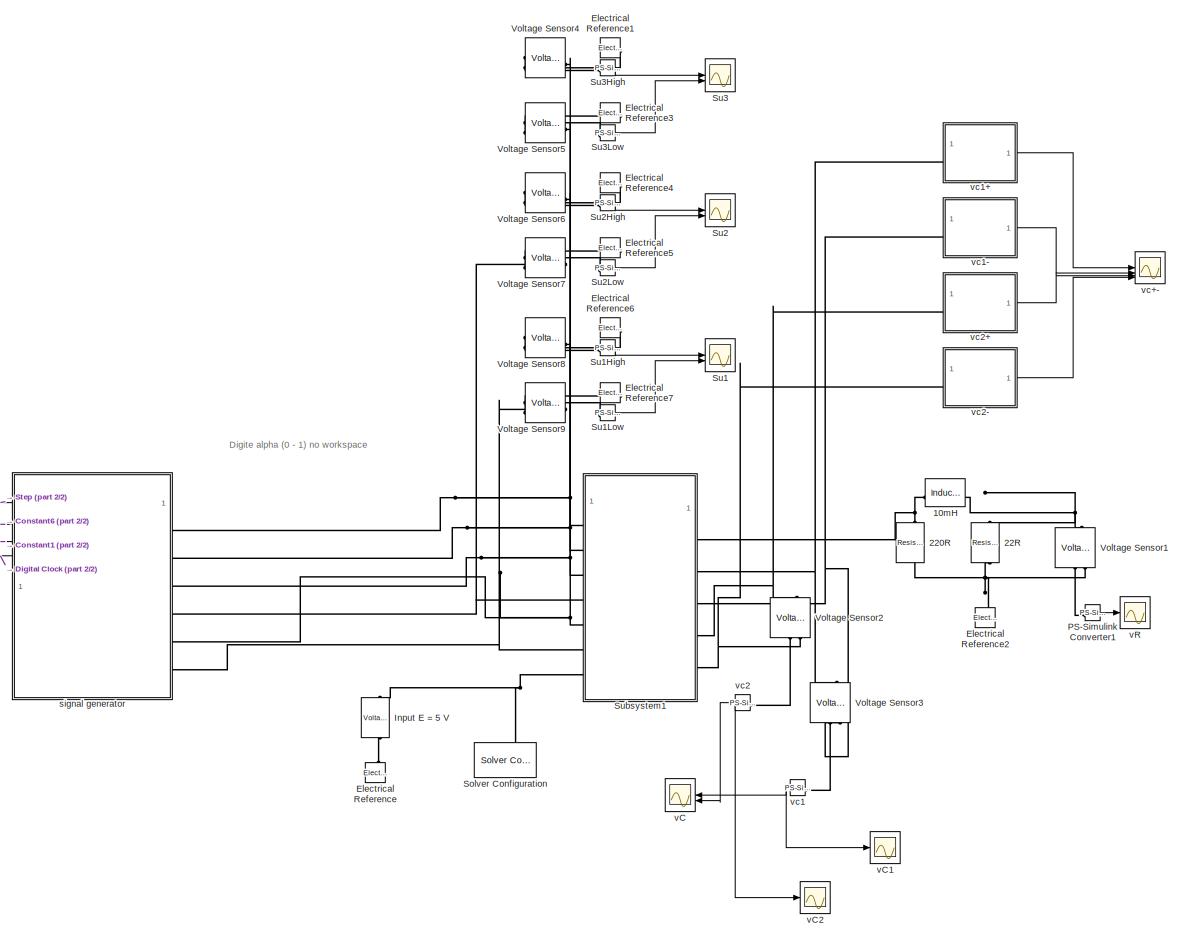
[diagram: root canvas - part 1/2, most of the canvas]
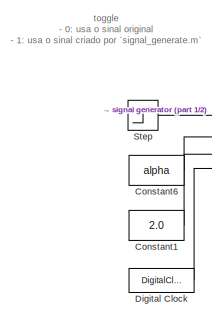
[diagram: root canvas - part 2/2, middle left region]
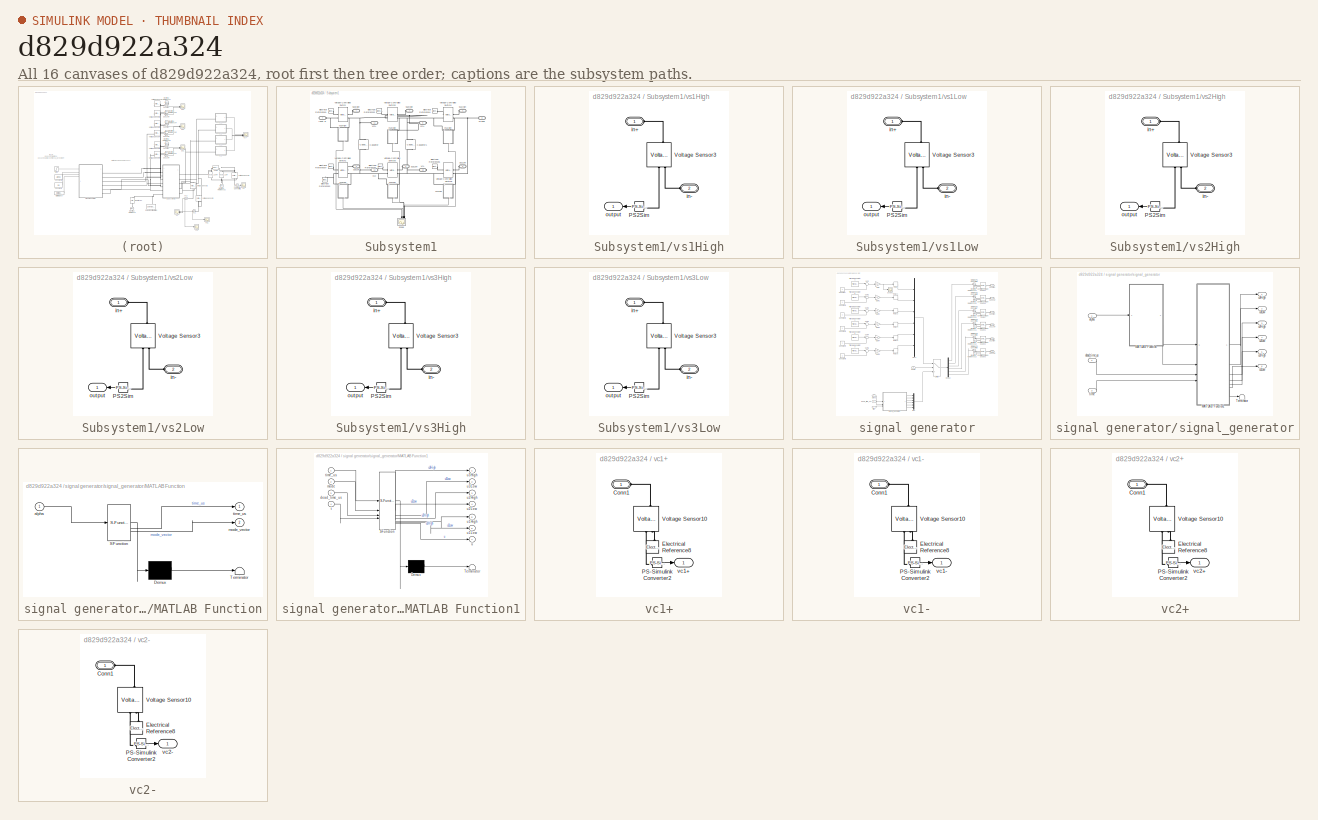
[diagram: thumbnail index - all 16 canvases of the model, root first then tree order]
MODEL slx_d829d922a324
KIND model
CONFIG AbsTol = auto
CONFIG EnableMultiTasking = off
CONFIG FixedStep = 1e-7
CONFIG MaxStep = auto
CONFIG MinStep = auto
CONFIG RelTol = 1e-3
CONFIG SampleTimeConstraint = Unconstrained
CONFIG SolverName = FixedStepAuto
CONFIG StartTime = 0.0
CONFIG StopTime = 0.04
BLOCK [Reference] 10mH  REF=ee_lib/Passive/Inductor
  SourceBlock = ee_lib/Passive/Inductor
  SourceType = Inductor
BLOCK [Reference] 220R  REF=ee_lib/Passive/Resistor
  NameLocation = left
  SourceBlock = ee_lib/Passive/Resistor
  SourceType = Resistor
BLOCK [Reference] 22R  REF=ee_lib/Passive/Resistor
  NameLocation = right
  SourceBlock = ee_lib/Passive/Resistor
  SourceType = Resistor
BLOCK [Constant] Constant1
  Value = 2.0
BLOCK [Constant] Constant6
  Value = alpha
BLOCK [DigitalClock] Digital Clock
  SampleTime = 1e-7
BLOCK [Reference] Electrical Reference  REF=fl_lib/Electrical/Electrical Elements/Electrical Reference
  LibrarySourceBlock = ee_lib/Connectors &\nReferences/Electrical Reference
  NameLocation = right
  SourceBlock = fl_lib/Electrical/Electrical Elements/Electrical Reference
  SourceType = Electrical Reference
BLOCK [Reference] Electrical Reference1  REF=fl_lib/Electrical/Electrical Elements/Electrical Reference
  LibrarySourceBlock = ee_lib/Connectors &\nReferences/Electrical Reference
  NameLocation = top
  SourceBlock = fl_lib/Electrical/Electrical Elements/Electrical Reference
  SourceType = Electrical Reference
BLOCK [Reference] Electrical Reference2  REF=fl_lib/Electrical/Electrical Elements/Electrical Reference
  LibrarySourceBlock = ee_lib/Connectors &\nReferences/Electrical Reference
  NameLocation = right
  SourceBlock = fl_lib/Electrical/Electrical Elements/Electrical Reference
  SourceType = Electrical Reference
BLOCK [Reference] Electrical Reference3  REF=fl_lib/Electrical/Electrical Elements/Electrical Reference
  LibrarySourceBlock = ee_lib/Connectors &\nReferences/Electrical Reference
  NameLocation = top
  SourceBlock = fl_lib/Electrical/Electrical Elements/Electrical Reference
  SourceType = Electrical Reference
BLOCK [Reference] Electrical Reference4  REF=fl_lib/Electrical/Electrical Elements/Electrical Reference
  LibrarySourceBlock = ee_lib/Connectors &\nReferences/Electrical Reference
  NameLocation = top
  SourceBlock = fl_lib/Electrical/Electrical Elements/Electrical Reference
  SourceType = Electrical Reference
BLOCK [Reference] Electrical Reference5  REF=fl_lib/Electrical/Electrical Elements/Electrical Reference
  LibrarySourceBlock = ee_lib/Connectors &\nReferences/Electrical Reference
  NameLocation = top
  SourceBlock = fl_lib/Electrical/Electrical Elements/Electrical Reference
  SourceType = Electrical Reference
BLOCK [Reference] Electrical Reference6  REF=fl_lib/Electrical/Electrical Elements/Electrical Reference
  LibrarySourceBlock = ee_lib/Connectors &\nReferences/Electrical Reference
  NameLocation = top
  SourceBlock = fl_lib/Electrical/Electrical Elements/Electrical Reference
  SourceType = Electrical Reference
BLOCK [Reference] Electrical Reference7  REF=fl_lib/Electrical/Electrical Elements/Electrical Reference
  LibrarySourceBlock = ee_lib/Connectors &\nReferences/Electrical Reference
  NameLocation = top
  SourceBlock = fl_lib/Electrical/Electrical Elements/Electrical Reference
  SourceType = Electrical Reference
BLOCK [Reference] Input E = 5 V  REF=ee_lib/Sources/Voltage Source
  NameLocation = left
  SourceBlock = ee_lib/Sources/Voltage Source
  SourceType = Voltage Source
BLOCK [Reference] PS-Simulink Converter1  REF=nesl_utility/PS-Simulink
Converter
  SourceBlock = nesl_utility/PS-Simulink\nConverter
  SourceType = PS-Simulink\nConverter
BLOCK [Reference] Solver Configuration  REF=nesl_utility/Solver
Configuration
  NameLocation = right
  SourceBlock = nesl_utility/Solver\nConfiguration
  SourceType = Solver\nConfiguration
BLOCK [Step] Step
  After = 0
  Before = 1
  SampleTime = 0
  Time = 0
BLOCK [Scope] Su1
  ActiveDisplayYMaximum = 1.0003414939639432
  ActiveDisplayYMinimum = 0.99850460772373162
  DataLoggingVariableName = ScopeData3
  Floating = off
  GraphicalSettings = {"AxesScalingProperties":{"AlignXAxis":"Center","AlignYAxis":"Center","AutoScaleXAxisLimits":false,"AxesScaling":"Manual","AxesScalingNumUpdates":10,"ExpandOnly":true,"ScaleAxesLimitsAtStop":false,"XAxisDataRange":100,"YAxisDataRange":80},"Cursors":{"CursorChannels":["auto","auto"],"Enabled":true,"Horizontal":true,"LinkToWaveform":true,"LockSpacing":false,"ShowMeasurement":true,"ShowPanel":false,"...<+2378ch>
  MultipleDisplayCache = [{"MaxYLimMag":1.25,"MaxYLimReal":1.0003414939639432,"MinYLimMag":0,"MinYLimReal":0.99850460772373162,"PlotAsMagnitudePhase":false,"ShowGrid":true,"ShowLegend":true,"Title":"%<SignalLabel>","YLabel":""}]
  NumInputPorts = 2
  ScopeFrameLocation = container
  ShowLegend = on
  WasSavedAsWebScope = on
  WindowPosition = [1378.000000,50.000000,1374.000000,1073.000000,]
BLOCK [Reference] Su1High  REF=nesl_utility/PS-Simulink
Converter
  SourceBlock = nesl_utility/PS-Simulink\nConverter
  SourceType = PS-Simulink\nConverter
BLOCK [Reference] Su1Low  REF=nesl_utility/PS-Simulink
Converter
  SourceBlock = nesl_utility/PS-Simulink\nConverter
  SourceType = PS-Simulink\nConverter
BLOCK [Scope] Su2
  ActiveDisplayYMaximum = 1.07216
  ActiveDisplayYMinimum = -1.01553
  DataLoggingVariableName = ScopeData2
  Floating = off
  GraphicalSettings = {"Style":{"BackgroundColor":[0.12941176470588237,0.12941176470588237,0.12941176470588237],"AxesColor":[0.07058823529411765,0.07058823529411765,0.07058823529411765],"LabelsColor":[0.8509803921568627,0.8509803921568627,0.8509803921568627],"PreserveColors":false,"Visible":[true,true],"LineStyle":["-","-"],"LineWidth":[1.5,1.5],"BarWidth":[0.9,0.9],"LineColor":["auto","auto"],"LineFaceAlpha":[1,1],"Li...<+2322ch>
  MultipleDisplayCache = [{"MaxYLimMag":1.07216,"MaxYLimReal":1.07216,"MinYLimMag":0,"MinYLimReal":-1.01553,"PlotAsMagnitudePhase":false,"ShowGrid":true,"ShowLegend":true,"Title":"%<SignalLabel>","YLabel":""}]
  NumInputPorts = 2
  ScopeFrameLocation = container
  ShowLegend = on
  WasSavedAsWebScope = on
  WindowPosition = [1378.000000,50.000000,1374.000000,1073.000000,]
BLOCK [Reference] Su2High  REF=nesl_utility/PS-Simulink
Converter
  SourceBlock = nesl_utility/PS-Simulink\nConverter
  SourceType = PS-Simulink\nConverter
BLOCK [Reference] Su2Low  REF=nesl_utility/PS-Simulink
Converter
  SourceBlock = nesl_utility/PS-Simulink\nConverter
  SourceType = PS-Simulink\nConverter
BLOCK [Scope] Su3
  ActiveDisplayYMaximum = 1.25
  ActiveDisplayYMinimum = -1.25
  DataLoggingVariableName = ScopeData1
  Floating = off
  GraphicalSettings = {"GraphicalSettings":{"LegacySettings":true,"Style":{"AxesScalingProperties":{"ScaleAxesLimitsAtStop":false},"Style":{"AxesColor":"[0 0 0]","ChannelNames":[""],"ColorOrder":"[1 0.909803921568627 0.392156862745098;0.149019607843137 0.549019607843137 0.866666666666667;0.96078431372549 0.466666666666667 0.16078431372549;0.286274509803922 0.858823529411765 0.250980392156863;0.752941176470588 0.3607843...<+516ch>
  MultipleDisplayCache = [{"MaxYLimMag":1.25,"MaxYLimReal":1.25,"MinYLimMag":0,"MinYLimReal":-1.25,"PlotAsMagnitudePhase":false,"ShowGrid":true,"ShowLegend":true,"Title":"%<SignalLabel>","YLabel":""}]
  NumInputPorts = 2
  ShowLegend = on
  WasSavedAsWebScope = on
  WindowPosition = [1 49 1366 643]
BLOCK [Reference] Su3High  REF=nesl_utility/PS-Simulink
Converter
  SourceBlock = nesl_utility/PS-Simulink\nConverter
  SourceType = PS-Simulink\nConverter
BLOCK [Reference] Su3Low  REF=nesl_utility/PS-Simulink
Converter
  SourceBlock = nesl_utility/PS-Simulink\nConverter
  SourceType = PS-Simulink\nConverter
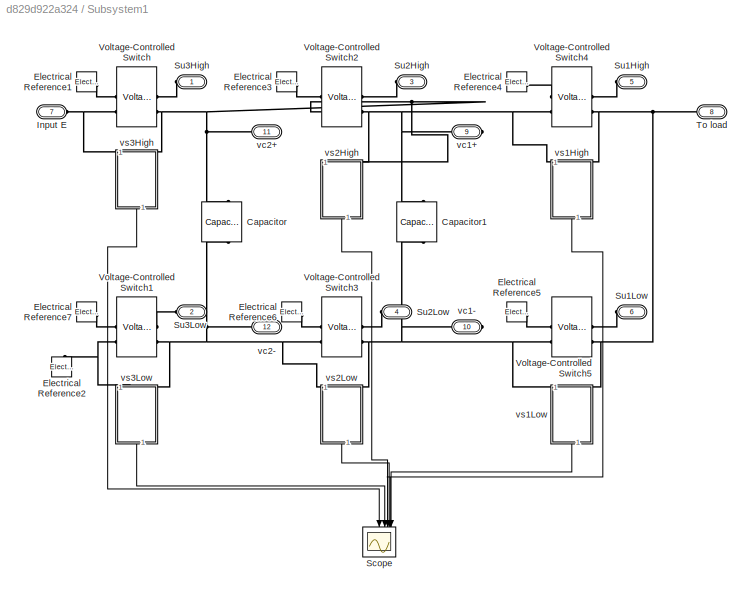
BLOCK [SubSystem] Subsystem1
BLOCK [Reference] Subsystem1/Capacitor  REF=ee_lib/Passive/Capacitor
  NameLocation = left
  SourceBlock = ee_lib/Passive/Capacitor
  SourceType = Capacitor
BLOCK [Reference] Subsystem1/Capacitor1  REF=ee_lib/Passive/Capacitor
  NameLocation = left
  SourceBlock = ee_lib/Passive/Capacitor
  SourceType = Capacitor
BLOCK [Reference] Subsystem1/Electrical Reference1  REF=fl_lib/Electrical/Electrical Elements/Electrical Reference
  LibrarySourceBlock = ee_lib/Connectors &\nReferences/Electrical Reference
  SourceBlock = fl_lib/Electrical/Electrical Elements/Electrical Reference
  SourceType = Electrical Reference
BLOCK [Reference] Subsystem1/Electrical Reference2  REF=fl_lib/Electrical/Electrical Elements/Electrical Reference
  LibrarySourceBlock = ee_lib/Connectors &\nReferences/Electrical Reference
  NameLocation = right
  SourceBlock = fl_lib/Electrical/Electrical Elements/Electrical Reference
  SourceType = Electrical Reference
BLOCK [Reference] Subsystem1/Electrical Reference3  REF=fl_lib/Electrical/Electrical Elements/Electrical Reference
  LibrarySourceBlock = ee_lib/Connectors &\nReferences/Electrical Reference
  SourceBlock = fl_lib/Electrical/Electrical Elements/Electrical Reference
  SourceType = Electrical Reference
BLOCK [Reference] Subsystem1/Electrical Reference4  REF=fl_lib/Electrical/Electrical Elements/Electrical Reference
  LibrarySourceBlock = ee_lib/Connectors &\nReferences/Electrical Reference
  SourceBlock = fl_lib/Electrical/Electrical Elements/Electrical Reference
  SourceType = Electrical Reference
BLOCK [Reference] Subsystem1/Electrical Reference5  REF=fl_lib/Electrical/Electrical Elements/Electrical Reference
  LibrarySourceBlock = ee_lib/Connectors &\nReferences/Electrical Reference
  SourceBlock = fl_lib/Electrical/Electrical Elements/Electrical Reference
  SourceType = Electrical Reference
BLOCK [Reference] Subsystem1/Electrical Reference6  REF=fl_lib/Electrical/Electrical Elements/Electrical Reference
  LibrarySourceBlock = ee_lib/Connectors &\nReferences/Electrical Reference
  SourceBlock = fl_lib/Electrical/Electrical Elements/Electrical Reference
  SourceType = Electrical Reference
BLOCK [Reference] Subsystem1/Electrical Reference7  REF=fl_lib/Electrical/Electrical Elements/Electrical Reference
  LibrarySourceBlock = ee_lib/Connectors &\nReferences/Electrical Reference
  SourceBlock = fl_lib/Electrical/Electrical Elements/Electrical Reference
  SourceType = Electrical Reference
BLOCK [PMIOPort] Subsystem1/Input E
  Port = 7
  Side = Left
BLOCK [Scope] Subsystem1/Scope
  ActiveDisplayYMaximum = 25.227625908816535
  ActiveDisplayYMinimum = -8.8853464798149755
  DataLoggingVariableName = ScopeData2
  Floating = off
  GraphicalSettings = {"Style":{"BackgroundColor":[0.12941176470588237,0.12941176470588237,0.12941176470588237],"AxesColor":[0.07058823529411765,0.07058823529411765,0.07058823529411765],"LabelsColor":[0.8509803921568627,0.8509803921568627,0.8509803921568627],"PreserveColors":false,"Visible":[true,true,true,true,true,true],"LineStyle":["-","-","-","-","-","-"],"LineWidth":[1.5,1.5,1.5,1.5,1.5,1.5],"BarWidth":[0.9,0.9,0....<+2546ch>
  MultipleDisplayCache = [{"MaxYLimMag":25.227625908816535,"MaxYLimReal":25.227625908816535,"MinYLimMag":0,"MinYLimReal":-8.8853464798149755,"PlotAsMagnitudePhase":false,"ShowGrid":true,"ShowLegend":true,"Title":"%<SignalLabel>","YLabel":""}]
  NameLocation = left
  NumInputPorts = 6
  ScopeFrameLocation = container
  ShowLegend = on
  WasSavedAsWebScope = on
  WindowPosition = [1378.000000,50.000000,1374.000000,1073.000000,]
BLOCK [PMIOPort] Subsystem1/Su1High
  NameLocation = top
  Port = 5
  Side = Left
BLOCK [PMIOPort] Subsystem1/Su1Low
  NameLocation = top
  Port = 6
  Side = Left
BLOCK [PMIOPort] Subsystem1/Su2High
  NameLocation = top
  Port = 3
  Side = Left
BLOCK [PMIOPort] Subsystem1/Su2Low
  NameLocation = top
  Port = 4
  Side = Left
BLOCK [PMIOPort] Subsystem1/Su3High
  NameLocation = top
  Side = Left
BLOCK [PMIOPort] Subsystem1/Su3Low
  NameLocation = top
  Port = 2
  Side = Left
BLOCK [PMIOPort] Subsystem1/To load
  NameLocation = top
  Port = 8
  Side = Right
BLOCK [Reference] Subsystem1/Voltage-Controlled Switch  REF=ee_lib/Additional
Components/SPICE Passives/Voltage-Controlled
Switch
  SourceBlock = ee_lib/Additional\nComponents/SPICE Passives/Voltage-Controlled\nSwitch
  SourceType = Voltage-Controlled\nSwitch
BLOCK [Reference] Subsystem1/Voltage-Controlled Switch1  REF=ee_lib/Additional
Components/SPICE Passives/Voltage-Controlled
Switch
  SourceBlock = ee_lib/Additional\nComponents/SPICE Passives/Voltage-Controlled\nSwitch
  SourceType = Voltage-Controlled\nSwitch
BLOCK [Reference] Subsystem1/Voltage-Controlled Switch2  REF=ee_lib/Additional
Components/SPICE Passives/Voltage-Controlled
Switch
  SourceBlock = ee_lib/Additional\nComponents/SPICE Passives/Voltage-Controlled\nSwitch
  SourceType = Voltage-Controlled\nSwitch
BLOCK [Reference] Subsystem1/Voltage-Controlled Switch3  REF=ee_lib/Additional
Components/SPICE Passives/Voltage-Controlled
Switch
  SourceBlock = ee_lib/Additional\nComponents/SPICE Passives/Voltage-Controlled\nSwitch
  SourceType = Voltage-Controlled\nSwitch
BLOCK [Reference] Subsystem1/Voltage-Controlled Switch4  REF=ee_lib/Additional
Components/SPICE Passives/Voltage-Controlled
Switch
  SourceBlock = ee_lib/Additional\nComponents/SPICE Passives/Voltage-Controlled\nSwitch
  SourceType = Voltage-Controlled\nSwitch
BLOCK [Reference] Subsystem1/Voltage-Controlled Switch5  REF=ee_lib/Additional
Components/SPICE Passives/Voltage-Controlled
Switch
  SourceBlock = ee_lib/Additional\nComponents/SPICE Passives/Voltage-Controlled\nSwitch
  SourceType = Voltage-Controlled\nSwitch
BLOCK [PMIOPort] Subsystem1/vc1+
  Port = 9
  Side = Right
BLOCK [PMIOPort] Subsystem1/vc1-
  NameLocation = top
  Port = 10
  Side = Right
BLOCK [PMIOPort] Subsystem1/vc2+
  Port = 11
  Side = Right
BLOCK [PMIOPort] Subsystem1/vc2-
  NameLocation = top
  Port = 12
  Side = Right
BLOCK [SubSystem] Subsystem1/vs1High
  NameLocation = left
BLOCK [Reference] Subsystem1/vs1High/PS2Sim  REF=nesl_utility/PS-Simulink
Converter
  NameLocation = top
  SourceBlock = nesl_utility/PS-Simulink\nConverter
  SourceType = PS-Simulink\nConverter
BLOCK [Reference] Subsystem1/vs1High/Voltage Sensor3  REF=fl_lib/Electrical/Electrical Sensors/Voltage Sensor
  NameLocation = right
  SourceBlock = fl_lib/Electrical/Electrical Sensors/Voltage Sensor
  SourceType = Voltage Sensor
BLOCK [PMIOPort] Subsystem1/vs1High/in+
  Side = Left
BLOCK [PMIOPort] Subsystem1/vs1High/in-
  Port = 2
  Side = Left
BLOCK [Outport] Subsystem1/vs1High/output
BLOCK [SubSystem] Subsystem1/vs1Low
  NameLocation = left
BLOCK [Reference] Subsystem1/vs1Low/PS2Sim  REF=nesl_utility/PS-Simulink
Converter
  NameLocation = top
  SourceBlock = nesl_utility/PS-Simulink\nConverter
  SourceType = PS-Simulink\nConverter
BLOCK [Reference] Subsystem1/vs1Low/Voltage Sensor3  REF=fl_lib/Electrical/Electrical Sensors/Voltage Sensor
  NameLocation = right
  SourceBlock = fl_lib/Electrical/Electrical Sensors/Voltage Sensor
  SourceType = Voltage Sensor
BLOCK [PMIOPort] Subsystem1/vs1Low/in+
  Side = Left
BLOCK [PMIOPort] Subsystem1/vs1Low/in-
  Port = 2
  Side = Left
BLOCK [Outport] Subsystem1/vs1Low/output
BLOCK [SubSystem] Subsystem1/vs2High
  NameLocation = left
BLOCK [Reference] Subsystem1/vs2High/PS2Sim  REF=nesl_utility/PS-Simulink
Converter
  NameLocation = top
  SourceBlock = nesl_utility/PS-Simulink\nConverter
  SourceType = PS-Simulink\nConverter
BLOCK [Reference] Subsystem1/vs2High/Voltage Sensor3  REF=fl_lib/Electrical/Electrical Sensors/Voltage Sensor
  NameLocation = right
  SourceBlock = fl_lib/Electrical/Electrical Sensors/Voltage Sensor
  SourceType = Voltage Sensor
BLOCK [PMIOPort] Subsystem1/vs2High/in+
  Side = Left
BLOCK [PMIOPort] Subsystem1/vs2High/in-
  Port = 2
  Side = Left
BLOCK [Outport] Subsystem1/vs2High/output
BLOCK [SubSystem] Subsystem1/vs2Low
  NameLocation = left
BLOCK [Reference] Subsystem1/vs2Low/PS2Sim  REF=nesl_utility/PS-Simulink
Converter
  NameLocation = top
  SourceBlock = nesl_utility/PS-Simulink\nConverter
  SourceType = PS-Simulink\nConverter
BLOCK [Reference] Subsystem1/vs2Low/Voltage Sensor3  REF=fl_lib/Electrical/Electrical Sensors/Voltage Sensor
  NameLocation = right
  SourceBlock = fl_lib/Electrical/Electrical Sensors/Voltage Sensor
  SourceType = Voltage Sensor
BLOCK [PMIOPort] Subsystem1/vs2Low/in+
  Side = Left
BLOCK [PMIOPort] Subsystem1/vs2Low/in-
  Port = 2
  Side = Left
BLOCK [Outport] Subsystem1/vs2Low/output
BLOCK [SubSystem] Subsystem1/vs3High
  NameLocation = left
BLOCK [Reference] Subsystem1/vs3High/PS2Sim  REF=nesl_utility/PS-Simulink
Converter
  NameLocation = top
  SourceBlock = nesl_utility/PS-Simulink\nConverter
  SourceType = PS-Simulink\nConverter
BLOCK [Reference] Subsystem1/vs3High/Voltage Sensor3  REF=fl_lib/Electrical/Electrical Sensors/Voltage Sensor
  LibrarySourceBlock = ee_lib/Sensors &\nTransducers/Voltage Sensor
  NameLocation = right
  SourceBlock = fl_lib/Electrical/Electrical Sensors/Voltage Sensor
  SourceType = Voltage Sensor
BLOCK [PMIOPort] Subsystem1/vs3High/in+
  Side = Left
BLOCK [PMIOPort] Subsystem1/vs3High/in-
  Port = 2
  Side = Left
BLOCK [Outport] Subsystem1/vs3High/output
BLOCK [SubSystem] Subsystem1/vs3Low
  NameLocation = left
BLOCK [Reference] Subsystem1/vs3Low/PS2Sim  REF=nesl_utility/PS-Simulink
Converter
  NameLocation = top
  SourceBlock = nesl_utility/PS-Simulink\nConverter
  SourceType = PS-Simulink\nConverter
BLOCK [Reference] Subsystem1/vs3Low/Voltage Sensor3  REF=fl_lib/Electrical/Electrical Sensors/Voltage Sensor
  NameLocation = right
  SourceBlock = fl_lib/Electrical/Electrical Sensors/Voltage Sensor
  SourceType = Voltage Sensor
BLOCK [PMIOPort] Subsystem1/vs3Low/in+
  Side = Left
BLOCK [PMIOPort] Subsystem1/vs3Low/in-
  Port = 2
  Side = Left
BLOCK [Outport] Subsystem1/vs3Low/output
BLOCK [Reference] Voltage Sensor1  REF=fl_lib/Electrical/Electrical Sensors/Voltage Sensor
  LibrarySourceBlock = ee_lib/Sensors &\nTransducers/Voltage Sensor
  NameLocation = right
  SourceBlock = fl_lib/Electrical/Electrical Sensors/Voltage Sensor
  SourceType = Voltage Sensor
BLOCK [Reference] Voltage Sensor2  REF=fl_lib/Electrical/Electrical Sensors/Voltage Sensor
  LibrarySourceBlock = ee_lib/Sensors &\nTransducers/Voltage Sensor
  NameLocation = right
  SourceBlock = fl_lib/Electrical/Electrical Sensors/Voltage Sensor
  SourceType = Voltage Sensor
BLOCK [Reference] Voltage Sensor3  REF=fl_lib/Electrical/Electrical Sensors/Voltage Sensor
  LibrarySourceBlock = ee_lib/Sensors &\nTransducers/Voltage Sensor
  NameLocation = right
  SourceBlock = fl_lib/Electrical/Electrical Sensors/Voltage Sensor
  SourceType = Voltage Sensor
BLOCK [Reference] Voltage Sensor4  REF=fl_lib/Electrical/Electrical Sensors/Voltage Sensor
  LibrarySourceBlock = ee_lib/Sensors &\nTransducers/Voltage Sensor
  NameLocation = top
  SourceBlock = fl_lib/Electrical/Electrical Sensors/Voltage Sensor
  SourceType = Voltage Sensor
BLOCK [Reference] Voltage Sensor5  REF=fl_lib/Electrical/Electrical Sensors/Voltage Sensor
  LibrarySourceBlock = ee_lib/Sensors &\nTransducers/Voltage Sensor
  NameLocation = top
  SourceBlock = fl_lib/Electrical/Electrical Sensors/Voltage Sensor
  SourceType = Voltage Sensor
BLOCK [Reference] Voltage Sensor6  REF=fl_lib/Electrical/Electrical Sensors/Voltage Sensor
  LibrarySourceBlock = ee_lib/Sensors &\nTransducers/Voltage Sensor
  NameLocation = top
  SourceBlock = fl_lib/Electrical/Electrical Sensors/Voltage Sensor
  SourceType = Voltage Sensor
BLOCK [Reference] Voltage Sensor7  REF=fl_lib/Electrical/Electrical Sensors/Voltage Sensor
  LibrarySourceBlock = ee_lib/Sensors &\nTransducers/Voltage Sensor
  NameLocation = top
  SourceBlock = fl_lib/Electrical/Electrical Sensors/Voltage Sensor
  SourceType = Voltage Sensor
BLOCK [Reference] Voltage Sensor8  REF=fl_lib/Electrical/Electrical Sensors/Voltage Sensor
  LibrarySourceBlock = ee_lib/Sensors &\nTransducers/Voltage Sensor
  NameLocation = top
  SourceBlock = fl_lib/Electrical/Electrical Sensors/Voltage Sensor
  SourceType = Voltage Sensor
BLOCK [Reference] Voltage Sensor9  REF=fl_lib/Electrical/Electrical Sensors/Voltage Sensor
  LibrarySourceBlock = ee_lib/Sensors &\nTransducers/Voltage Sensor
  NameLocation = top
  SourceBlock = fl_lib/Electrical/Electrical Sensors/Voltage Sensor
  SourceType = Voltage Sensor
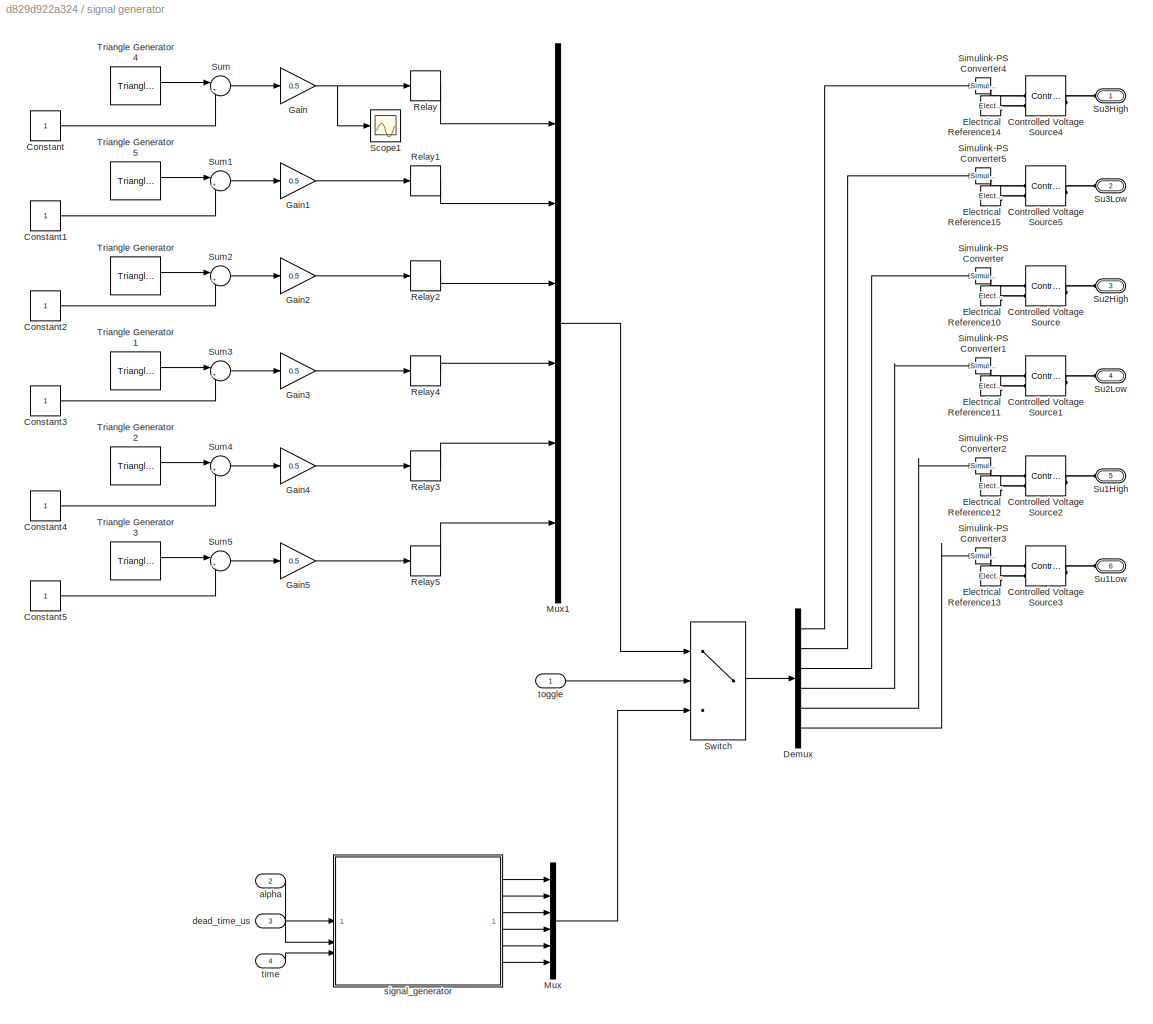
BLOCK [SubSystem] signal generator
  PortSchema = {"entries":[{"content":{"sides":[{"content":{"connectorIds":["LConn1","LConn2","LConn3","LConn4","LConn5","LConn6"]},"type":"ConnectorPlacement.EquallySpacedRectSide","uuid":"aa1a153a-1645-4c3d-b48e-03759f31f217"},{"content":{"connectorIds":["In1","In2","In3","In4"],"side":"RIGHT"},"type":"ConnectorPlacement.EquallySpacedRectSide","uuid":"be438c4b-dc66-4eaf-bb53-25e90e68573c"},{"content":{"side":"...<+287ch>
BLOCK [Constant] signal generator/Constant
BLOCK [Constant] signal generator/Constant1
BLOCK [Constant] signal generator/Constant2
BLOCK [Constant] signal generator/Constant3
BLOCK [Constant] signal generator/Constant4
BLOCK [Constant] signal generator/Constant5
BLOCK [Reference] signal generator/Controlled Voltage Source  REF=fl_lib/Electrical/Electrical Sources/Controlled Voltage
Source
  SourceBlock = fl_lib/Electrical/Electrical Sources/Controlled Voltage\nSource
  SourceType = Controlled Voltage\nSource
BLOCK [Reference] signal generator/Controlled Voltage Source1  REF=fl_lib/Electrical/Electrical Sources/Controlled Voltage
Source
  SourceBlock = fl_lib/Electrical/Electrical Sources/Controlled Voltage\nSource
  SourceType = Controlled Voltage\nSource
BLOCK [Reference] signal generator/Controlled Voltage Source2  REF=fl_lib/Electrical/Electrical Sources/Controlled Voltage
Source
  SourceBlock = fl_lib/Electrical/Electrical Sources/Controlled Voltage\nSource
  SourceType = Controlled Voltage\nSource
BLOCK [Reference] signal generator/Controlled Voltage Source3  REF=fl_lib/Electrical/Electrical Sources/Controlled Voltage
Source
  SourceBlock = fl_lib/Electrical/Electrical Sources/Controlled Voltage\nSource
  SourceType = Controlled Voltage\nSource
BLOCK [Reference] signal generator/Controlled Voltage Source4  REF=fl_lib/Electrical/Electrical Sources/Controlled Voltage
Source
  SourceBlock = fl_lib/Electrical/Electrical Sources/Controlled Voltage\nSource
  SourceType = Controlled Voltage\nSource
BLOCK [Reference] signal generator/Controlled Voltage Source5  REF=fl_lib/Electrical/Electrical Sources/Controlled Voltage
Source
  SourceBlock = fl_lib/Electrical/Electrical Sources/Controlled Voltage\nSource
  SourceType = Controlled Voltage\nSource
BLOCK [Demux] signal generator/Demux
  Outputs = 6
BLOCK [Reference] signal generator/Electrical Reference10  REF=fl_lib/Electrical/Electrical Elements/Electrical Reference
  LibrarySourceBlock = ee_lib/Connectors &\nReferences/Electrical Reference
  SourceBlock = fl_lib/Electrical/Electrical Elements/Electrical Reference
  SourceType = Electrical Reference
BLOCK [Reference] signal generator/Electrical Reference11  REF=fl_lib/Electrical/Electrical Elements/Electrical Reference
  LibrarySourceBlock = ee_lib/Connectors &\nReferences/Electrical Reference
  SourceBlock = fl_lib/Electrical/Electrical Elements/Electrical Reference
  SourceType = Electrical Reference
BLOCK [Reference] signal generator/Electrical Reference12  REF=fl_lib/Electrical/Electrical Elements/Electrical Reference
  LibrarySourceBlock = ee_lib/Connectors &\nReferences/Electrical Reference
  SourceBlock = fl_lib/Electrical/Electrical Elements/Electrical Reference
  SourceType = Electrical Reference
BLOCK [Reference] signal generator/Electrical Reference13  REF=fl_lib/Electrical/Electrical Elements/Electrical Reference
  LibrarySourceBlock = ee_lib/Connectors &\nReferences/Electrical Reference
  SourceBlock = fl_lib/Electrical/Electrical Elements/Electrical Reference
  SourceType = Electrical Reference
BLOCK [Reference] signal generator/Electrical Reference14  REF=fl_lib/Electrical/Electrical Elements/Electrical Reference
  LibrarySourceBlock = ee_lib/Connectors &\nReferences/Electrical Reference
  SourceBlock = fl_lib/Electrical/Electrical Elements/Electrical Reference
  SourceType = Electrical Reference
BLOCK [Reference] signal generator/Electrical Reference15  REF=fl_lib/Electrical/Electrical Elements/Electrical Reference
  LibrarySourceBlock = ee_lib/Connectors &\nReferences/Electrical Reference
  SourceBlock = fl_lib/Electrical/Electrical Elements/Electrical Reference
  SourceType = Electrical Reference
BLOCK [Gain] signal generator/Gain
  Gain = 0.5
BLOCK [Gain] signal generator/Gain1
  Gain = 0.5
BLOCK [Gain] signal generator/Gain2
  Gain = 0.5
BLOCK [Gain] signal generator/Gain3
  Gain = 0.5
BLOCK [Gain] signal generator/Gain4
  Gain = 0.5
BLOCK [Gain] signal generator/Gain5
  Gain = 0.5
BLOCK [Mux] signal generator/Mux
  DisplayOption = bar
  Inputs = 6
BLOCK [Mux] signal generator/Mux1
  DisplayOption = bar
  Inputs = 6
BLOCK [Relay] signal generator/Relay
  OffOutputValue = 1
  OffSwitchValue = alpha - 2/141
  OnOutputValue = -1
  OnSwitchValue = alpha
BLOCK [Relay] signal generator/Relay1
  OffOutputValue = -1
  OffSwitchValue = alpha
  OnOutputValue = +1
  OnSwitchValue = alpha + 2/141
BLOCK [Relay] signal generator/Relay2
  OffOutputValue = 1
  OffSwitchValue = alpha - 2/141
  OnOutputValue = -1
  OnSwitchValue = alpha
BLOCK [Relay] signal generator/Relay3
  OffOutputValue = 1
  OffSwitchValue = alpha - 2/141
  OnOutputValue = -1
  OnSwitchValue = alpha
BLOCK [Relay] signal generator/Relay4
  OffOutputValue = -1
  OffSwitchValue = alpha
  OnOutputValue = +1
  OnSwitchValue = alpha + 2/141
BLOCK [Relay] signal generator/Relay5
  OffOutputValue = -1
  OffSwitchValue = alpha
  OnOutputValue = +1
  OnSwitchValue = alpha + 2/141
BLOCK [Scope] signal generator/Scope1
  ActiveDisplayYMaximum = 1.07583
  ActiveDisplayYMinimum = -0.04742
  DataLoggingVariableName = ScopeData2
  Floating = off
  GraphicalSettings = {"GraphicalSettings":{"LegacySettings":true,"Style":{"AxesScalingProperties":{"ScaleAxesLimitsAtStop":false},"Style":{"AxesColor":"[0 0 0]","ChannelNames":[""],"ColorOrder":"[1 0.909803921568627 0.392156862745098;0.149019607843137 0.549019607843137 0.866666666666667;0.96078431372549 0.466666666666667 0.16078431372549;0.286274509803922 0.858823529411765 0.250980392156863;0.752941176470588 0.3607843...<+488ch>
  MultipleDisplayCache = [{"MaxYLimMag":1.07583,"MaxYLimReal":1.07583,"MinYLimMag":0,"MinYLimReal":-0.04742,"PlotAsMagnitudePhase":false,"ShowGrid":true,"ShowLegend":false,"Title":"%<SignalLabel>","YLabel":""}]
  NumInputPorts = 1
  WasSavedAsWebScope = on
  WindowPosition = [-1365 49 1366 643]
BLOCK [Reference] signal generator/Simulink-PS Converter  REF=nesl_utility/Simulink-PS
Converter
  SourceBlock = nesl_utility/Simulink-PS\nConverter
  SourceType = Simulink-PS\nConverter
BLOCK [Reference] signal generator/Simulink-PS Converter1  REF=nesl_utility/Simulink-PS
Converter
  SourceBlock = nesl_utility/Simulink-PS\nConverter
  SourceType = Simulink-PS\nConverter
BLOCK [Reference] signal generator/Simulink-PS Converter2  REF=nesl_utility/Simulink-PS
Converter
  SourceBlock = nesl_utility/Simulink-PS\nConverter
  SourceType = Simulink-PS\nConverter
BLOCK [Reference] signal generator/Simulink-PS Converter3  REF=nesl_utility/Simulink-PS
Converter
  SourceBlock = nesl_utility/Simulink-PS\nConverter
  SourceType = Simulink-PS\nConverter
BLOCK [Reference] signal generator/Simulink-PS Converter4  REF=nesl_utility/Simulink-PS
Converter
  SourceBlock = nesl_utility/Simulink-PS\nConverter
  SourceType = Simulink-PS\nConverter
BLOCK [Reference] signal generator/Simulink-PS Converter5  REF=nesl_utility/Simulink-PS
Converter
  SourceBlock = nesl_utility/Simulink-PS\nConverter
  SourceType = Simulink-PS\nConverter
BLOCK [PMIOPort] signal generator/Su1High
  Port = 5
  Side = Left
BLOCK [PMIOPort] signal generator/Su1Low
  Port = 6
  Side = Left
BLOCK [PMIOPort] signal generator/Su2High
  Port = 3
  Side = Left
BLOCK [PMIOPort] signal generator/Su2Low
  Port = 4
  Side = Left
BLOCK [PMIOPort] signal generator/Su3High
  Side = Left
BLOCK [PMIOPort] signal generator/Su3Low
  Port = 2
  Side = Left
BLOCK [Sum] signal generator/Sum
  Inputs = |++
BLOCK [Sum] signal generator/Sum1
  Inputs = |++
BLOCK [Sum] signal generator/Sum2
  Inputs = |++
BLOCK [Sum] signal generator/Sum3
  Inputs = |++
BLOCK [Sum] signal generator/Sum4
  Inputs = |++
BLOCK [Sum] signal generator/Sum5
  Inputs = |++
BLOCK [Switch] signal generator/Switch
  Criteria = u2 > Threshold
  InputSameDT = off
  SaturateOnIntegerOverflow = off
BLOCK [Reference] signal generator/Triangle Generator  REF=spsTriangleGeneratorLib/Triangle
Generator
  LibrarySourceBlock = sps_lib/Sources/Signal Generator Sources/Triangle\nGenerator
  SourceBlock = spsTriangleGeneratorLib/Triangle\nGenerator
  SourceType = Triangle Generator
BLOCK [Reference] signal generator/Triangle Generator1  REF=spsTriangleGeneratorLib/Triangle
Generator
  LibrarySourceBlock = sps_lib/Sources/Signal Generator Sources/Triangle\nGenerator
  SourceBlock = spsTriangleGeneratorLib/Triangle\nGenerator
  SourceType = Triangle Generator
BLOCK [Reference] signal generator/Triangle Generator2  REF=spsTriangleGeneratorLib/Triangle
Generator
  LibrarySourceBlock = sps_lib/Sources/Signal Generator Sources/Triangle\nGenerator
  SourceBlock = spsTriangleGeneratorLib/Triangle\nGenerator
  SourceType = Triangle Generator
BLOCK [Reference] signal generator/Triangle Generator3  REF=spsTriangleGeneratorLib/Triangle
Generator
  LibrarySourceBlock = sps_lib/Sources/Signal Generator Sources/Triangle\nGenerator
  SourceBlock = spsTriangleGeneratorLib/Triangle\nGenerator
  SourceType = Triangle Generator
BLOCK [Reference] signal generator/Triangle Generator4  REF=spsTriangleGeneratorLib/Triangle
Generator
  LibrarySourceBlock = sps_lib/Sources/Signal Generator Sources/Triangle\nGenerator
  SourceBlock = spsTriangleGeneratorLib/Triangle\nGenerator
  SourceType = Triangle Generator
BLOCK [Reference] signal generator/Triangle Generator5  REF=spsTriangleGeneratorLib/Triangle
Generator
  LibrarySourceBlock = sps_lib/Sources/Signal Generator Sources/Triangle\nGenerator
  SourceBlock = spsTriangleGeneratorLib/Triangle\nGenerator
  SourceType = Triangle Generator
BLOCK [Inport] signal generator/alpha
  Port = 2
BLOCK [Inport] signal generator/dead_time_us
  Port = 3
BLOCK [SubSystem] signal generator/signal_generator
BLOCK [SubSystem] signal generator/signal_generator/MATLAB Function
  ErrorFcn = Stateflow.Translate.translate
  PermitHierarchicalResolution = ExplicitOnly
  SFBlockType = MATLAB Function
  TreatAsAtomicUnit = on
BLOCK [Demux] signal generator/signal_generator/MATLAB Function/ Demux 
  Outputs = 1
BLOCK [S-Function] signal generator/signal_generator/MATLAB Function/ SFunction 
  EnableBusSupport = off
  FunctionName = sf_sfun
  PortCounts = [1 3]
  SFcnIsStateOwnerBlock = off
  SFunctionDeploymentMode = off
  Tag = Stateflow S-Function 2
BLOCK [Terminator] signal generator/signal_generator/MATLAB Function/ Terminator 
BLOCK [Inport] signal generator/signal_generator/MATLAB Function/alpha
BLOCK [Outport] signal generator/signal_generator/MATLAB Function/mode_vector
  Port = 2
BLOCK [Outport] signal generator/signal_generator/MATLAB Function/time_us
BLOCK [SubSystem] signal generator/signal_generator/MATLAB Function1
  ErrorFcn = Stateflow.Translate.translate
  PermitHierarchicalResolution = ExplicitOnly
  SFBlockType = MATLAB Function
  TreatAsAtomicUnit = on
BLOCK [Demux] signal generator/signal_generator/MATLAB Function1/ Demux 
  Outputs = 1
BLOCK [S-Function] signal generator/signal_generator/MATLAB Function1/ SFunction 
  EnableBusSupport = off
  FunctionName = sf_sfun
  PortCounts = [4 8]
  SFcnIsStateOwnerBlock = off
  SFunctionDeploymentMode = off
  Tag = Stateflow S-Function 1
BLOCK [Terminator] signal generator/signal_generator/MATLAB Function1/ Terminator 
BLOCK [Inport] signal generator/signal_generator/MATLAB Function1/dead_time_us
  Port = 3
BLOCK [Inport] signal generator/signal_generator/MATLAB Function1/mode
  Port = 2
BLOCK [Inport] signal generator/signal_generator/MATLAB Function1/t
  Port = 4
BLOCK [Inport] signal generator/signal_generator/MATLAB Function1/time_us
BLOCK [Outport] signal generator/signal_generator/MATLAB Function1/u
  Port = 7
BLOCK [Outport] signal generator/signal_generator/MATLAB Function1/u1High
  Port = 5
BLOCK [Outport] signal generator/signal_generator/MATLAB Function1/u1Low
  Port = 6
BLOCK [Outport] signal generator/signal_generator/MATLAB Function1/u2High
  Port = 3
BLOCK [Outport] signal generator/signal_generator/MATLAB Function1/u2Low
  Port = 4
BLOCK [Outport] signal generator/signal_generator/MATLAB Function1/u3High
BLOCK [Outport] signal generator/signal_generator/MATLAB Function1/u3Low
  Port = 2
BLOCK [Terminator] signal generator/signal_generator/Terminator
BLOCK [Inport] signal generator/signal_generator/alpha
BLOCK [Inport] signal generator/signal_generator/dead_time_us
  Port = 2
BLOCK [Inport] signal generator/signal_generator/time
  Port = 3
BLOCK [Outport] signal generator/signal_generator/u1High
  Port = 5
BLOCK [Outport] signal generator/signal_generator/u1Low
  Port = 6
BLOCK [Outport] signal generator/signal_generator/u2High
  Port = 3
BLOCK [Outport] signal generator/signal_generator/u2Low
  Port = 4
BLOCK [Outport] signal generator/signal_generator/u3High
BLOCK [Outport] signal generator/signal_generator/u3Low
  Port = 2
BLOCK [Inport] signal generator/time
  Port = 4
BLOCK [Inport] signal generator/toggle
BLOCK [Scope] vC
  ActiveDisplayYMaximum = 6.9513683577501517
  ActiveDisplayYMinimum = -0.84659912811996252
  Floating = off
  GraphicalSettings = {"Style":{"BackgroundColor":[0.12941176470588237,0.12941176470588237,0.12941176470588237],"AxesColor":[0.07058823529411765,0.07058823529411765,0.07058823529411765],"LabelsColor":[0.8509803921568627,0.8509803921568627,0.8509803921568627],"PreserveColors":false,"Visible":[false,true],"LineStyle":["-","-"],"LineWidth":[1.5,1.5],"BarWidth":[0.9,0.9],"LineColor":["auto","auto"],"LineFaceAlpha":[1,1],"L...<+2393ch>
  MultipleDisplayCache = [{"MaxYLimMag":6.1966727556328483,"MaxYLimReal":6.9513683577501517,"MinYLimMag":0,"MinYLimReal":-0.84659912811996252,"PlotAsMagnitudePhase":false,"ShowGrid":true,"ShowLegend":true,"Title":"%<SignalLabel>","YLabel":""}]
  NameLocation = top
  NumInputPorts = 2
  OpenAtSimulationStart = on
  ScopeFrameLocation = container
  ShowLegend = on
  WasSavedAsWebScope = on
  WindowPosition = [1378.000000,50.000000,1374.000000,1073.000000,]
BLOCK [Scope] vC1
  ActiveDisplayYMaximum = 1.8347191591870249
  ActiveDisplayYMinimum = 1.5127533601392706
  DataLoggingVariableName = ScopeData4
  Floating = off
  GraphicalSettings = {"Style":{"BackgroundColor":[0.12941176470588237,0.12941176470588237,0.12941176470588237],"AxesColor":[0.07058823529411765,0.07058823529411765,0.07058823529411765],"LabelsColor":[0.8509803921568627,0.8509803921568627,0.8509803921568627],"PreserveColors":false,"Visible":[true],"LineStyle":["-"],"LineWidth":[1.5],"BarWidth":[0.9],"LineColor":["auto"],"LineFaceAlpha":[1],"LineEdgeAlpha":[1],"Marker":...<+2494ch>
  MultipleDisplayCache = [{"MaxYLimMag":4.0359188088096767,"MaxYLimReal":1.8347191591870249,"MinYLimMag":0,"MinYLimReal":1.5127533601392706,"PlotAsMagnitudePhase":false,"ShowGrid":true,"ShowLegend":false,"Title":"%<SignalLabel>","YLabel":""}]
  NumInputPorts = 1
  ScopeFrameLocation = container
  WasSavedAsWebScope = on
  WindowPosition = [1378.000000,50.000000,1374.000000,1073.000000,]
BLOCK [Scope] vC2
  ActiveDisplayYMaximum = 3.5294915136441256
  ActiveDisplayYMinimum = 3.0808662411635424
  DataLoggingVariableName = ScopeData5
  Floating = off
  GraphicalSettings = {"Style":{"BackgroundColor":[0.12941176470588237,0.12941176470588237,0.12941176470588237],"AxesColor":[0.07058823529411765,0.07058823529411765,0.07058823529411765],"LabelsColor":[0.8509803921568627,0.8509803921568627,0.8509803921568627],"PreserveColors":false,"Visible":[true],"LineStyle":["-"],"LineWidth":[1.5],"BarWidth":[0.9],"LineColor":["auto"],"LineFaceAlpha":[1],"LineEdgeAlpha":[1],"Marker":...<+2483ch>
  MultipleDisplayCache = [{"MaxYLimMag":5.79466160479938,"MaxYLimReal":3.5294915136441256,"MinYLimMag":0,"MinYLimReal":3.0808662411635424,"PlotAsMagnitudePhase":false,"ShowGrid":true,"ShowLegend":false,"Title":"%<SignalLabel>","YLabel":""}]
  NumInputPorts = 1
  ScopeFrameLocation = container
  WasSavedAsWebScope = on
  WindowPosition = [1378.000000,50.000000,1374.000000,1073.000000,]
BLOCK [Scope] vR
  ActiveDisplayYMaximum = 0.38136658735243295
  ActiveDisplayYMinimum = 0.27238883407399678
  DataLoggingVariableName = ScopeData1
  Floating = off
  GraphicalSettings = {"Style":{"BackgroundColor":[0.12941176470588237,0.12941176470588237,0.12941176470588237],"AxesColor":[0.07058823529411765,0.07058823529411765,0.07058823529411765],"LabelsColor":[0.8509803921568627,0.8509803921568627,0.8509803921568627],"PreserveColors":false,"Visible":[true],"LineStyle":["-"],"LineWidth":[1.5],"BarWidth":[0.9],"LineColor":["auto"],"LineFaceAlpha":[1],"LineEdgeAlpha":[1],"Marker":...<+2517ch>
  MultipleDisplayCache = [{"MaxYLimMag":1.11802,"MaxYLimReal":0.38136658735243295,"MinYLimMag":0,"MinYLimReal":0.27238883407399678,"PlotAsMagnitudePhase":false,"ShowGrid":true,"ShowLegend":false,"Title":"%<SignalLabel>","YLabel":""}]
  NumInputPorts = 1
  ScopeFrameLocation = container
  WasSavedAsWebScope = on
  WindowPosition = [1378.000000,50.000000,1374.000000,1073.000000,]
BLOCK [Scope] vc+-
  ActiveDisplayYMaximum = 9.39765
  ActiveDisplayYMinimum = -18.52788
  DataLoggingVariableName = ScopeData1
  Floating = off
  GraphicalSettings = {"Style":{"BackgroundColor":[0.12941176470588237,0.12941176470588237,0.12941176470588237],"AxesColor":[0.07058823529411765,0.07058823529411765,0.07058823529411765],"LabelsColor":[0.8509803921568627,0.8509803921568627,0.8509803921568627],"PreserveColors":false,"Visible":[true,true,true,true],"LineStyle":["-","-","-","-"],"LineWidth":[1.5,1.5,1.5,1.5],"BarWidth":[0.9,0.9,0.9,0.9],"LineColor":["auto"...<+2258ch>
  MultipleDisplayCache = [{"MaxYLimMag":18.52788,"MaxYLimReal":9.39765,"MinYLimMag":0,"MinYLimReal":-18.52788,"PlotAsMagnitudePhase":false,"ShowGrid":true,"ShowLegend":true,"Title":"%<SignalLabel>","YLabel":""}]
  NumInputPorts = 4
  ScopeFrameLocation = container
  ShowLegend = on
  WasSavedAsWebScope = on
  WindowPosition = [1378.000000,50.000000,1374.000000,1073.000000,]
BLOCK [Reference] vc1  REF=nesl_utility/PS-Simulink
Converter
  NameLocation = top
  SourceBlock = nesl_utility/PS-Simulink\nConverter
  SourceType = PS-Simulink\nConverter
BLOCK [SubSystem] vc1+
BLOCK [PMIOPort] vc1+/Conn1
  Side = Left
BLOCK [Reference] vc1+/Electrical Reference8  REF=fl_lib/Electrical/Electrical Elements/Electrical Reference
  LibrarySourceBlock = ee_lib/Connectors &\nReferences/Electrical Reference
  NameLocation = right
  SourceBlock = fl_lib/Electrical/Electrical Elements/Electrical Reference
  SourceType = Electrical Reference
BLOCK [Reference] vc1+/PS-Simulink Converter2  REF=nesl_utility/PS-Simulink
Converter
  SourceBlock = nesl_utility/PS-Simulink\nConverter
  SourceType = PS-Simulink\nConverter
BLOCK [Reference] vc1+/Voltage Sensor10  REF=fl_lib/Electrical/Electrical Sensors/Voltage Sensor
  LibrarySourceBlock = ee_lib/Sensors &\nTransducers/Voltage Sensor
  NameLocation = right
  SourceBlock = fl_lib/Electrical/Electrical Sensors/Voltage Sensor
  SourceType = Voltage Sensor
BLOCK [Outport] vc1+/vc1+
BLOCK [SubSystem] vc1-
BLOCK [PMIOPort] vc1-/Conn1
  Side = Left
BLOCK [Reference] vc1-/Electrical Reference8  REF=fl_lib/Electrical/Electrical Elements/Electrical Reference
  NameLocation = right
  SourceBlock = fl_lib/Electrical/Electrical Elements/Electrical Reference
  SourceType = Electrical Reference
BLOCK [Reference] vc1-/PS-Simulink Converter2  REF=nesl_utility/PS-Simulink
Converter
  SourceBlock = nesl_utility/PS-Simulink\nConverter
  SourceType = PS-Simulink\nConverter
BLOCK [Reference] vc1-/Voltage Sensor10  REF=fl_lib/Electrical/Electrical Sensors/Voltage Sensor
  NameLocation = right
  SourceBlock = fl_lib/Electrical/Electrical Sensors/Voltage Sensor
  SourceType = Voltage Sensor
BLOCK [Outport] vc1-/vc1-
BLOCK [Reference] vc2  REF=nesl_utility/PS-Simulink
Converter
  NameLocation = top
  SourceBlock = nesl_utility/PS-Simulink\nConverter
  SourceType = PS-Simulink\nConverter
BLOCK [SubSystem] vc2+
BLOCK [PMIOPort] vc2+/Conn1
  Side = Left
BLOCK [Reference] vc2+/Electrical Reference8  REF=fl_lib/Electrical/Electrical Elements/Electrical Reference
  NameLocation = right
  SourceBlock = fl_lib/Electrical/Electrical Elements/Electrical Reference
  SourceType = Electrical Reference
BLOCK [Reference] vc2+/PS-Simulink Converter2  REF=nesl_utility/PS-Simulink
Converter
  SourceBlock = nesl_utility/PS-Simulink\nConverter
  SourceType = PS-Simulink\nConverter
BLOCK [Reference] vc2+/Voltage Sensor10  REF=fl_lib/Electrical/Electrical Sensors/Voltage Sensor
  NameLocation = right
  SourceBlock = fl_lib/Electrical/Electrical Sensors/Voltage Sensor
  SourceType = Voltage Sensor
BLOCK [Outport] vc2+/vc2+
BLOCK [SubSystem] vc2-
BLOCK [PMIOPort] vc2-/Conn1
  Side = Left
BLOCK [Reference] vc2-/Electrical Reference8  REF=fl_lib/Electrical/Electrical Elements/Electrical Reference
  NameLocation = right
  SourceBlock = fl_lib/Electrical/Electrical Elements/Electrical Reference
  SourceType = Electrical Reference
BLOCK [Reference] vc2-/PS-Simulink Converter2  REF=nesl_utility/PS-Simulink
Converter
  SourceBlock = nesl_utility/PS-Simulink\nConverter
  SourceType = PS-Simulink\nConverter
BLOCK [Reference] vc2-/Voltage Sensor10  REF=fl_lib/Electrical/Electrical Sensors/Voltage Sensor
  NameLocation = right
  SourceBlock = fl_lib/Electrical/Electrical Sensors/Voltage Sensor
  SourceType = Voltage Sensor
BLOCK [Outport] vc2-/vc2-
ANNOTATION (root): Digite alpha (0 - 1) no workspace
ANNOTATION (root): toggle - 0: usa o sinal original - 1: usa o sinal criado por `signal_generate.m`
LINE Constant1:1 -> signal generator:3
LINE Constant6:1 -> signal generator:2
LINE Digital Clock:1 -> signal generator:4
LINE PS-Simulink Converter1:1 -> vR:1
LINE Step:1 -> signal generator:1
LINE Su1High:1 -> Su1:1
LINE Su1Low:1 -> Su1:2
LINE Su2High:1 -> Su2:1
LINE Su2Low:1 -> Su2:2
LINE Su3High:1 -> Su3:1
LINE Su3Low:1 -> Su3:2
LINE Subsystem1/vs1High/PS2Sim:1 -> Subsystem1/vs1High/output:1
LINE Subsystem1/vs1High:1 -> Subsystem1/Scope:5
LINE Subsystem1/vs1Low/PS2Sim:1 -> Subsystem1/vs1Low/output:1
LINE Subsystem1/vs1Low:1 -> Subsystem1/Scope:6
LINE Subsystem1/vs2High/PS2Sim:1 -> Subsystem1/vs2High/output:1
LINE Subsystem1/vs2High:1 -> Subsystem1/Scope:3
LINE Subsystem1/vs2Low/PS2Sim:1 -> Subsystem1/vs2Low/output:1
LINE Subsystem1/vs2Low:1 -> Subsystem1/Scope:4
LINE Subsystem1/vs3High/PS2Sim:1 -> Subsystem1/vs3High/output:1
LINE Subsystem1/vs3High:1 -> Subsystem1/Scope:1
LINE Subsystem1/vs3Low/PS2Sim:1 -> Subsystem1/vs3Low/output:1
LINE Subsystem1/vs3Low:1 -> Subsystem1/Scope:2
LINE signal generator/Constant1:1 -> signal generator/Sum1:2
LINE signal generator/Constant2:1 -> signal generator/Sum2:2
LINE signal generator/Constant3:1 -> signal generator/Sum3:2
LINE signal generator/Constant4:1 -> signal generator/Sum4:2
LINE signal generator/Constant5:1 -> signal generator/Sum5:2
LINE signal generator/Constant:1 -> signal generator/Sum:2
LINE signal generator/Demux:1 -> signal generator/Simulink-PS Converter4:1
LINE signal generator/Demux:2 -> signal generator/Simulink-PS Converter5:1
LINE signal generator/Demux:3 -> signal generator/Simulink-PS Converter:1
LINE signal generator/Demux:4 -> signal generator/Simulink-PS Converter1:1
LINE signal generator/Demux:5 -> signal generator/Simulink-PS Converter2:1
LINE signal generator/Demux:6 -> signal generator/Simulink-PS Converter3:1
LINE signal generator/Gain1:1 -> signal generator/Relay1:1
LINE signal generator/Gain2:1 -> signal generator/Relay2:1
LINE signal generator/Gain3:1 -> signal generator/Relay4:1
LINE signal generator/Gain4:1 -> signal generator/Relay3:1
LINE signal generator/Gain5:1 -> signal generator/Relay5:1
NET signal generator/Gain:1 -> signal generator/Relay:1, signal generator/Scope1:1
LINE signal generator/Mux1:1 -> signal generator/Switch:1
LINE signal generator/Mux:1 -> signal generator/Switch:3
LINE signal generator/Relay1:1 -> signal generator/Mux1:2
LINE signal generator/Relay2:1 -> signal generator/Mux1:3
LINE signal generator/Relay3:1 -> signal generator/Mux1:5
LINE signal generator/Relay4:1 -> signal generator/Mux1:4
LINE signal generator/Relay5:1 -> signal generator/Mux1:6
LINE signal generator/Relay:1 -> signal generator/Mux1:1
LINE signal generator/Sum1:1 -> signal generator/Gain1:1
LINE signal generator/Sum2:1 -> signal generator/Gain2:1
LINE signal generator/Sum3:1 -> signal generator/Gain3:1
LINE signal generator/Sum4:1 -> signal generator/Gain4:1
LINE signal generator/Sum5:1 -> signal generator/Gain5:1
LINE signal generator/Sum:1 -> signal generator/Gain:1
LINE signal generator/Switch:1 -> signal generator/Demux:1
LINE signal generator/Triangle Generator1:1 -> signal generator/Sum3:1
LINE signal generator/Triangle Generator2:1 -> signal generator/Sum4:1
LINE signal generator/Triangle Generator3:1 -> signal generator/Sum5:1
LINE signal generator/Triangle Generator4:1 -> signal generator/Sum:1
LINE signal generator/Triangle Generator5:1 -> signal generator/Sum1:1
LINE signal generator/Triangle Generator:1 -> signal generator/Sum2:1
LINE signal generator/alpha:1 -> signal generator/signal_generator:1
LINE signal generator/dead_time_us:1 -> signal generator/signal_generator:2
LINE signal generator/signal_generator/MATLAB Function1:1 -> signal generator/signal_generator/u3High:1
LINE signal generator/signal_generator/MATLAB Function1:2 -> signal generator/signal_generator/u3Low:1
LINE signal generator/signal_generator/MATLAB Function1:3 -> signal generator/signal_generator/u2High:1
LINE signal generator/signal_generator/MATLAB Function1:4 -> signal generator/signal_generator/u2Low:1
LINE signal generator/signal_generator/MATLAB Function1:5 -> signal generator/signal_generator/u1High:1
LINE signal generator/signal_generator/MATLAB Function1:6 -> signal generator/signal_generator/u1Low:1
LINE signal generator/signal_generator/MATLAB Function1:7 -> signal generator/signal_generator/Terminator:1
LINE signal generator/signal_generator/MATLAB Function:1 -> signal generator/signal_generator/MATLAB Function1:1
LINE signal generator/signal_generator/MATLAB Function:2 -> signal generator/signal_generator/MATLAB Function1:2
LINE signal generator/signal_generator/alpha:1 -> signal generator/signal_generator/MATLAB Function:1
LINE signal generator/signal_generator/dead_time_us:1 -> signal generator/signal_generator/MATLAB Function1:3
LINE signal generator/signal_generator/time:1 -> signal generator/signal_generator/MATLAB Function1:4
LINE signal generator/signal_generator:1 -> signal generator/Mux:1
LINE signal generator/signal_generator:2 -> signal generator/Mux:2
LINE signal generator/signal_generator:3 -> signal generator/Mux:3
LINE signal generator/signal_generator:4 -> signal generator/Mux:4
LINE signal generator/signal_generator:5 -> signal generator/Mux:5
LINE signal generator/signal_generator:6 -> signal generator/Mux:6
LINE signal generator/time:1 -> signal generator/signal_generator:3
LINE signal generator/toggle:1 -> signal generator/Switch:2
LINE vc1+/PS-Simulink Converter2:1 -> vc1+/vc1+:1
LINE vc1+:1 -> vc+-:1
LINE vc1-/PS-Simulink Converter2:1 -> vc1-/vc1-:1
LINE vc1-:1 -> vc+-:2
NET vc1:1 -> vC1:1, vC:1
LINE vc2+/PS-Simulink Converter2:1 -> vc2+/vc2+:1
LINE vc2+:1 -> vc+-:3
LINE vc2-/PS-Simulink Converter2:1 -> vc2-/vc2-:1
LINE vc2-:1 -> vc+-:4
NET vc2:1 -> vC2:1, vC:2
PNET net1: 10mH:LConn1 -- 220R:LConn1 -- Subsystem1:RConn1
PNET net2: 10mH:RConn1 -- 22R:LConn1 -- Voltage Sensor1:LConn1
PNET net3: 220R:RConn1 -- 22R:RConn1 -- Electrical Reference2:LConn1 -- Voltage Sensor1:RConn2
PLINE Electrical Reference1:LConn1 -- Voltage Sensor4:RConn2
PLINE Electrical Reference3:LConn1 -- Voltage Sensor5:RConn2
PLINE Electrical Reference4:LConn1 -- Voltage Sensor6:RConn2
PLINE Electrical Reference5:LConn1 -- Voltage Sensor7:RConn2
PLINE Electrical Reference6:LConn1 -- Voltage Sensor8:RConn2
PLINE Electrical Reference7:LConn1 -- Voltage Sensor9:RConn2
PLINE Electrical Reference:LConn1 -- Input E = 5 V:RConn1
PNET net4: Input E = 5 V:LConn1 -- Solver Configuration:RConn1 -- Subsystem1:LConn7
PLINE PS-Simulink Converter1:LConn1 -- Voltage Sensor1:RConn1
PLINE Su1High:LConn1 -- Voltage Sensor8:RConn1
PLINE Su1Low:LConn1 -- Voltage Sensor9:RConn1
PLINE Su2High:LConn1 -- Voltage Sensor6:RConn1
PLINE Su2Low:LConn1 -- Voltage Sensor7:RConn1
PLINE Su3High:LConn1 -- Voltage Sensor4:RConn1
PLINE Su3Low:LConn1 -- Voltage Sensor5:RConn1
PNET net5: Subsystem1/Capacitor1:LConn1 -- Subsystem1/Voltage-Controlled Switch2:LConn2 -- Subsystem1/Voltage-Controlled Switch4:RConn2 -- Subsystem1/vc1+:RConn1 -- Subsystem1/vs1High:LConn1 -- Subsystem1/vs2High:LConn2
PNET net6: Subsystem1/Capacitor1:RConn1 -- Subsystem1/Voltage-Controlled Switch3:LConn2 -- Subsystem1/Voltage-Controlled Switch5:RConn2 -- Subsystem1/vc1-:RConn1 -- Subsystem1/vs1Low:LConn1 -- Subsystem1/vs2Low:LConn2
PNET net7: Subsystem1/Capacitor:LConn1 -- Subsystem1/Voltage-Controlled Switch2:RConn2 -- Subsystem1/Voltage-Controlled Switch:LConn2 -- Subsystem1/vc2+:RConn1 -- Subsystem1/vs2High:LConn1 -- Subsystem1/vs3High:LConn2
PNET net8: Subsystem1/Capacitor:RConn1 -- Subsystem1/Voltage-Controlled Switch1:LConn2 -- Subsystem1/Voltage-Controlled Switch3:RConn2 -- Subsystem1/vc2-:RConn1 -- Subsystem1/vs2Low:LConn1 -- Subsystem1/vs3Low:LConn2
PLINE Subsystem1/Electrical Reference1:LConn1 -- Subsystem1/Voltage-Controlled Switch:RConn1
PNET net9: Subsystem1/Electrical Reference2:LConn1 -- Subsystem1/Voltage-Controlled Switch1:RConn2 -- Subsystem1/vs3Low:LConn1
PLINE Subsystem1/Electrical Reference3:LConn1 -- Subsystem1/Voltage-Controlled Switch2:RConn1
PLINE Subsystem1/Electrical Reference4:LConn1 -- Subsystem1/Voltage-Controlled Switch4:RConn1
PLINE Subsystem1/Electrical Reference5:LConn1 -- Subsystem1/Voltage-Controlled Switch5:RConn1
PLINE Subsystem1/Electrical Reference6:LConn1 -- Subsystem1/Voltage-Controlled Switch3:RConn1
PLINE Subsystem1/Electrical Reference7:LConn1 -- Subsystem1/Voltage-Controlled Switch1:RConn1
PNET net10: Subsystem1/Input E:RConn1 -- Subsystem1/Voltage-Controlled Switch:RConn2 -- Subsystem1/vs3High:LConn1
PLINE Subsystem1/Su1High:RConn1 -- Subsystem1/Voltage-Controlled Switch4:LConn1
PLINE Subsystem1/Su1Low:RConn1 -- Subsystem1/Voltage-Controlled Switch5:LConn1
PLINE Subsystem1/Su2High:RConn1 -- Subsystem1/Voltage-Controlled Switch2:LConn1
PLINE Subsystem1/Su2Low:RConn1 -- Subsystem1/Voltage-Controlled Switch3:LConn1
PLINE Subsystem1/Su3High:RConn1 -- Subsystem1/Voltage-Controlled Switch:LConn1
PLINE Subsystem1/Su3Low:RConn1 -- Subsystem1/Voltage-Controlled Switch1:LConn1
PNET net11: Subsystem1/To load:RConn1 -- Subsystem1/Voltage-Controlled Switch4:LConn2 -- Subsystem1/Voltage-Controlled Switch5:LConn2 -- Subsystem1/vs1High:LConn2 -- Subsystem1/vs1Low:LConn2
PLINE Subsystem1/vs1High/PS2Sim:LConn1 -- Subsystem1/vs1High/Voltage Sensor3:RConn1
PLINE Subsystem1/vs1High/Voltage Sensor3:LConn1 -- Subsystem1/vs1High/in+:RConn1
PLINE Subsystem1/vs1High/Voltage Sensor3:RConn2 -- Subsystem1/vs1High/in-:RConn1
PLINE Subsystem1/vs1Low/PS2Sim:LConn1 -- Subsystem1/vs1Low/Voltage Sensor3:RConn1
PLINE Subsystem1/vs1Low/Voltage Sensor3:LConn1 -- Subsystem1/vs1Low/in+:RConn1
PLINE Subsystem1/vs1Low/Voltage Sensor3:RConn2 -- Subsystem1/vs1Low/in-:RConn1
PLINE Subsystem1/vs2High/PS2Sim:LConn1 -- Subsystem1/vs2High/Voltage Sensor3:RConn1
PLINE Subsystem1/vs2High/Voltage Sensor3:LConn1 -- Subsystem1/vs2High/in+:RConn1
PLINE Subsystem1/vs2High/Voltage Sensor3:RConn2 -- Subsystem1/vs2High/in-:RConn1
PLINE Subsystem1/vs2Low/PS2Sim:LConn1 -- Subsystem1/vs2Low/Voltage Sensor3:RConn1
PLINE Subsystem1/vs2Low/Voltage Sensor3:LConn1 -- Subsystem1/vs2Low/in+:RConn1
PLINE Subsystem1/vs2Low/Voltage Sensor3:RConn2 -- Subsystem1/vs2Low/in-:RConn1
PLINE Subsystem1/vs3High/PS2Sim:LConn1 -- Subsystem1/vs3High/Voltage Sensor3:RConn1
PLINE Subsystem1/vs3High/Voltage Sensor3:LConn1 -- Subsystem1/vs3High/in+:RConn1
PLINE Subsystem1/vs3High/Voltage Sensor3:RConn2 -- Subsystem1/vs3High/in-:RConn1
PLINE Subsystem1/vs3Low/PS2Sim:LConn1 -- Subsystem1/vs3Low/Voltage Sensor3:RConn1
PLINE Subsystem1/vs3Low/Voltage Sensor3:LConn1 -- Subsystem1/vs3Low/in+:RConn1
PLINE Subsystem1/vs3Low/Voltage Sensor3:RConn2 -- Subsystem1/vs3Low/in-:RConn1
PNET net12: Subsystem1:LConn1 -- Voltage Sensor4:LConn1 -- signal generator:LConn1
PNET net13: Subsystem1:LConn2 -- Voltage Sensor5:LConn1 -- signal generator:LConn2
PNET net14: Subsystem1:LConn3 -- Voltage Sensor6:LConn1 -- signal generator:LConn3
PNET net15: Subsystem1:LConn4 -- Voltage Sensor7:LConn1 -- signal generator:LConn4
PNET net16: Subsystem1:LConn5 -- Voltage Sensor8:LConn1 -- signal generator:LConn5
PNET net17: Subsystem1:LConn6 -- Voltage Sensor9:LConn1 -- signal generator:LConn6
PNET net18: Subsystem1:RConn2 -- Voltage Sensor3:LConn1 -- vc1+:LConn1
PNET net19: Subsystem1:RConn3 -- Voltage Sensor3:RConn2 -- vc1-:LConn1
PNET net20: Subsystem1:RConn4 -- Voltage Sensor2:LConn1 -- vc2+:LConn1
PNET net21: Subsystem1:RConn5 -- Voltage Sensor2:RConn2 -- vc2-:LConn1
PLINE Voltage Sensor2:RConn1 -- vc2:LConn1
PLINE Voltage Sensor3:RConn1 -- vc1:LConn1
PLINE signal generator/Controlled Voltage Source1:LConn1 -- signal generator/Su2Low:RConn1
PLINE signal generator/Controlled Voltage Source1:RConn1 -- signal generator/Simulink-PS Converter1:RConn1
PLINE signal generator/Controlled Voltage Source1:RConn2 -- signal generator/Electrical Reference11:LConn1
PLINE signal generator/Controlled Voltage Source2:LConn1 -- signal generator/Su1High:RConn1
PLINE signal generator/Controlled Voltage Source2:RConn1 -- signal generator/Simulink-PS Converter2:RConn1
PLINE signal generator/Controlled Voltage Source2:RConn2 -- signal generator/Electrical Reference12:LConn1
PLINE signal generator/Controlled Voltage Source3:LConn1 -- signal generator/Su1Low:RConn1
PLINE signal generator/Controlled Voltage Source3:RConn1 -- signal generator/Simulink-PS Converter3:RConn1
PLINE signal generator/Controlled Voltage Source3:RConn2 -- signal generator/Electrical Reference13:LConn1
PLINE signal generator/Controlled Voltage Source4:LConn1 -- signal generator/Su3High:RConn1
PLINE signal generator/Controlled Voltage Source4:RConn1 -- signal generator/Simulink-PS Converter4:RConn1
PLINE signal generator/Controlled Voltage Source4:RConn2 -- signal generator/Electrical Reference14:LConn1
PLINE signal generator/Controlled Voltage Source5:LConn1 -- signal generator/Su3Low:RConn1
PLINE signal generator/Controlled Voltage Source5:RConn1 -- signal generator/Simulink-PS Converter5:RConn1
PLINE signal generator/Controlled Voltage Source5:RConn2 -- signal generator/Electrical Reference15:LConn1
PLINE signal generator/Controlled Voltage Source:LConn1 -- signal generator/Su2High:RConn1
PLINE signal generator/Controlled Voltage Source:RConn1 -- signal generator/Simulink-PS Converter:RConn1
PLINE signal generator/Controlled Voltage Source:RConn2 -- signal generator/Electrical Reference10:LConn1
PLINE vc1+/Conn1:RConn1 -- vc1+/Voltage Sensor10:LConn1
PLINE vc1+/Electrical Reference8:LConn1 -- vc1+/Voltage Sensor10:RConn2
PLINE vc1+/PS-Simulink Converter2:LConn1 -- vc1+/Voltage Sensor10:RConn1
PLINE vc1-/Conn1:RConn1 -- vc1-/Voltage Sensor10:LConn1
PLINE vc1-/Electrical Reference8:LConn1 -- vc1-/Voltage Sensor10:RConn2
PLINE vc1-/PS-Simulink Converter2:LConn1 -- vc1-/Voltage Sensor10:RConn1
PLINE vc2+/Conn1:RConn1 -- vc2+/Voltage Sensor10:LConn1
PLINE vc2+/Electrical Reference8:LConn1 -- vc2+/Voltage Sensor10:RConn2
PLINE vc2+/PS-Simulink Converter2:LConn1 -- vc2+/Voltage Sensor10:RConn1
PLINE vc2-/Conn1:RConn1 -- vc2-/Voltage Sensor10:LConn1
PLINE vc2-/Electrical Reference8:LConn1 -- vc2-/Voltage Sensor10:RConn2
PLINE vc2-/PS-Simulink Converter2:LConn1 -- vc2-/Voltage Sensor10:RConn1
note: NET lines group one-source signal fan-out (src -> all destinations, sorted); 1:1 wires keep LINE; PNET lines group multi-terminal physical nets as a canonical sorted terminal list (undirected conserving connections); 2-terminal nets keep the pairwise PLINE form
CHART signal generator/signal_generator/MATLAB Function1 states=1 transitions=1
  STATE_LABEL 'eML_blk_kernel()'
  STATE_LABEL 'SCRIPT:\nfunction [u3High, u3Low ,u2High, u2Low ,u1High, u1Low, u] = generate_signal(time_us, mode, dead_time_us, t)\n\n    [u3High, u3Low ,u2High, u2Low ,u1High, u1Low, u] = signal_generate(time_us, mode, dead_time_us, t);\n\n\n'
CHART signal generator/signal_generator/MATLAB Function states=1 transitions=1
  STATE_LABEL 'eML_blk_kernel()'
  STATE_LABEL 'SCRIPT:\nfunction [time_us, mode_vector] = fcn(alpha)\n    [time_us, mode_vector] = signal_create(alpha);\n'
CHART  states=0 transitions=0
CHART  states=0 transitions=0
